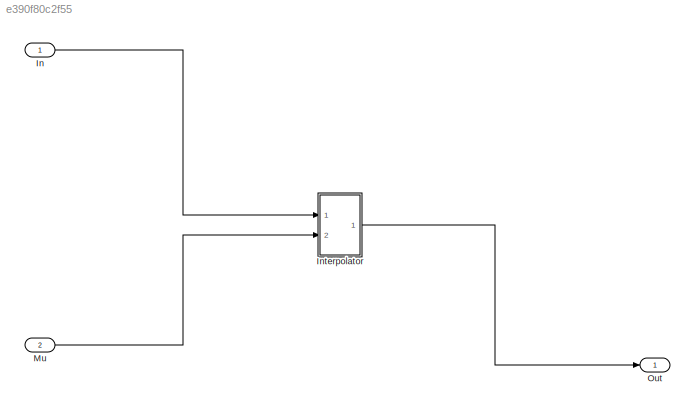
MODEL slx_e390f80c2f55
KIND model
CONFIG AbsTol = auto
CONFIG FixedStep = auto
CONFIG MaxStep = auto
CONFIG MinStep = auto
CONFIG RelTol = 1e-3
CONFIG SampleTimeConstraint = Unconstrained
CONFIG Solver = VariableStepAuto
CONFIG SolverMode = Auto
CONFIG SolverName = VariableStepAuto
CONFIG StartTime = 0.0
CONFIG StopTime = 10.0
BLOCK [Inport] In
  IconDisplay = Port number
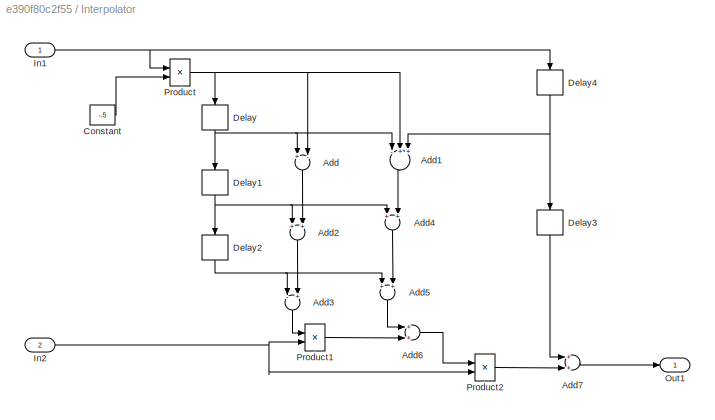
BLOCK [SubSystem] Interpolator 
  Ports = [2, 1]
  RequestExecContextInheritance = off
  Variant = off
BLOCK [Sum] Interpolator /Add
  InputSameDT = off
  Inputs = +-
  OutDataTypeStr = Inherit: Inherit via internal rule
  Ports = [2, 1]
  SaturateOnIntegerOverflow = off
BLOCK [Sum] Interpolator /Add1
  InputSameDT = off
  Inputs = -++
  OutDataTypeStr = Inherit: Inherit via internal rule
  Ports = [3, 1]
  SaturateOnIntegerOverflow = off
BLOCK [Sum] Interpolator /Add2
  InputSameDT = off
  OutDataTypeStr = Inherit: Inherit via internal rule
  Ports = [2, 1]
  SaturateOnIntegerOverflow = off
BLOCK [Sum] Interpolator /Add3
  InputSameDT = off
  Inputs = -+
  OutDataTypeStr = Inherit: Inherit via internal rule
  Ports = [2, 1]
  SaturateOnIntegerOverflow = off
BLOCK [Sum] Interpolator /Add4
  InputSameDT = off
  OutDataTypeStr = Inherit: Inherit via internal rule
  Ports = [2, 1]
  SaturateOnIntegerOverflow = off
BLOCK [Sum] Interpolator /Add5
  InputSameDT = off
  OutDataTypeStr = Inherit: Inherit via internal rule
  Ports = [2, 1]
  SaturateOnIntegerOverflow = off
BLOCK [Sum] Interpolator /Add6
  InputSameDT = off
  OutDataTypeStr = Inherit: Inherit via internal rule
  Ports = [2, 1]
  SaturateOnIntegerOverflow = off
BLOCK [Sum] Interpolator /Add7
  InputSameDT = off
  OutDataTypeStr = Inherit: Inherit via internal rule
  Ports = [2, 1]
  SaturateOnIntegerOverflow = off
BLOCK [Constant] Interpolator /Constant
  Value = -.5
BLOCK [Delay] Interpolator /Delay
  DelayLength = 1
  InputPortMap = u0
  InputProcessing = Columns as channels (frame based)
  Ports = [1, 1]
BLOCK [Delay] Interpolator /Delay1
  DelayLength = 1
  InputPortMap = u0
  InputProcessing = Columns as channels (frame based)
  Ports = [1, 1]
BLOCK [Delay] Interpolator /Delay2
  DelayLength = 1
  InputPortMap = u0
  InputProcessing = Columns as channels (frame based)
  Ports = [1, 1]
BLOCK [Delay] Interpolator /Delay3
  DelayLength = 1
  InputPortMap = u0
  InputProcessing = Columns as channels (frame based)
  Ports = [1, 1]
BLOCK [Delay] Interpolator /Delay4
  DelayLength = 1
  InputPortMap = u0
  InputProcessing = Columns as channels (frame based)
  Ports = [1, 1]
BLOCK [Inport] Interpolator /In1
  IconDisplay = Port number
BLOCK [Inport] Interpolator /In2
  IconDisplay = Port number
  Port = 2
BLOCK [Outport] Interpolator /Out1
  IconDisplay = Port number
BLOCK [Product] Interpolator /Product
  InputSameDT = off
  OutDataTypeStr = Inherit: Inherit via internal rule
  Ports = [2, 1]
  RndMeth = Floor
  SaturateOnIntegerOverflow = off
BLOCK [Product] Interpolator /Product1
  InputSameDT = off
  OutDataTypeStr = Inherit: Inherit via internal rule
  Ports = [2, 1]
  RndMeth = Floor
  SaturateOnIntegerOverflow = off
BLOCK [Product] Interpolator /Product2
  InputSameDT = off
  OutDataTypeStr = Inherit: Inherit via internal rule
  Ports = [2, 1]
  RndMeth = Floor
  SaturateOnIntegerOverflow = off
BLOCK [Inport] Mu 
  IconDisplay = Port number
  Port = 2
BLOCK [Outport] Out 
  IconDisplay = Port number
LINE In:1 -> Interpolator :1
LINE Interpolator /Add1:1 -> Interpolator /Add4:2
LINE Interpolator /Add2:1 -> Interpolator /Add3:2
LINE Interpolator /Add3:1 -> Interpolator /Product1:1
LINE Interpolator /Add4:1 -> Interpolator /Add5:2
LINE Interpolator /Add5:1 -> Interpolator /Add6:1
LINE Interpolator /Add6:1 -> Interpolator /Product2:1
LINE Interpolator /Add7:1 -> Interpolator /Out1:1
LINE Interpolator /Add:1 -> Interpolator /Add2:2
LINE Interpolator /Constant:1 -> Interpolator /Product:2
NET Interpolator /Delay1:1 -> Interpolator /Add2:1, Interpolator /Add4:1, Interpolator /Delay2:1
NET Interpolator /Delay2:1 -> Interpolator /Add3:1, Interpolator /Add5:1
LINE Interpolator /Delay3:1 -> Interpolator /Add7:1
NET Interpolator /Delay4:1 -> Interpolator /Add1:3, Interpolator /Delay3:1
NET Interpolator /Delay:1 -> Interpolator /Add1:1, Interpolator /Add:1, Interpolator /Delay1:1
NET Interpolator /In1:1 -> Interpolator /Delay4:1, Interpolator /Product:1
NET Interpolator /In2:1 -> Interpolator /Product1:2, Interpolator /Product2:2
LINE Interpolator /Product1:1 -> Interpolator /Add6:2
LINE Interpolator /Product2:1 -> Interpolator /Add7:2
NET Interpolator /Product:1 -> Interpolator /Add1:2, Interpolator /Add:2, Interpolator /Delay:1
LINE Interpolator :1 -> Out :1
LINE Mu :1 -> Interpolator :2
note: NET lines group one-source signal fan-out (src -> all destinations, sorted); 1:1 wires keep LINE
